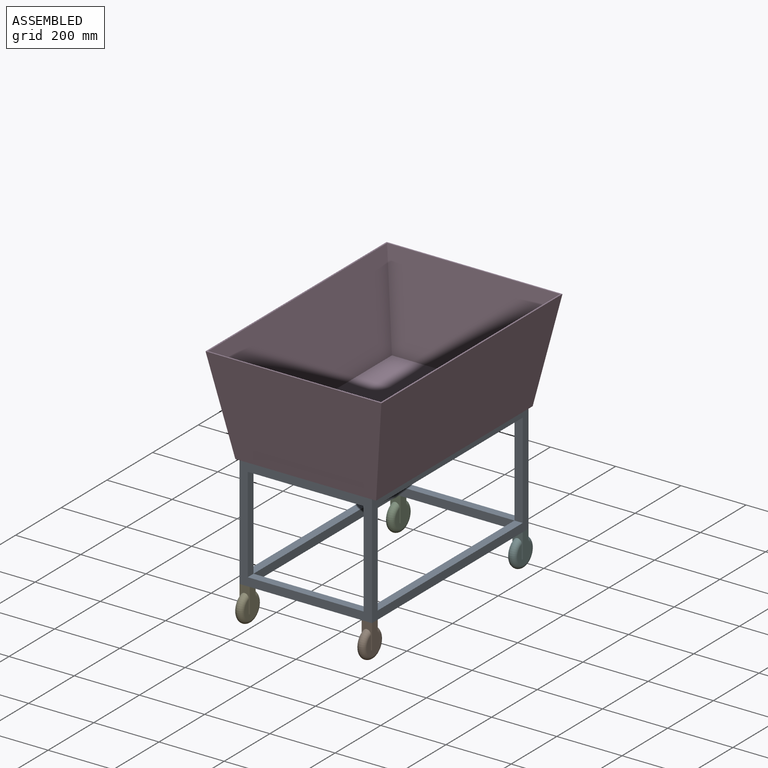
[diagram: assembled view]
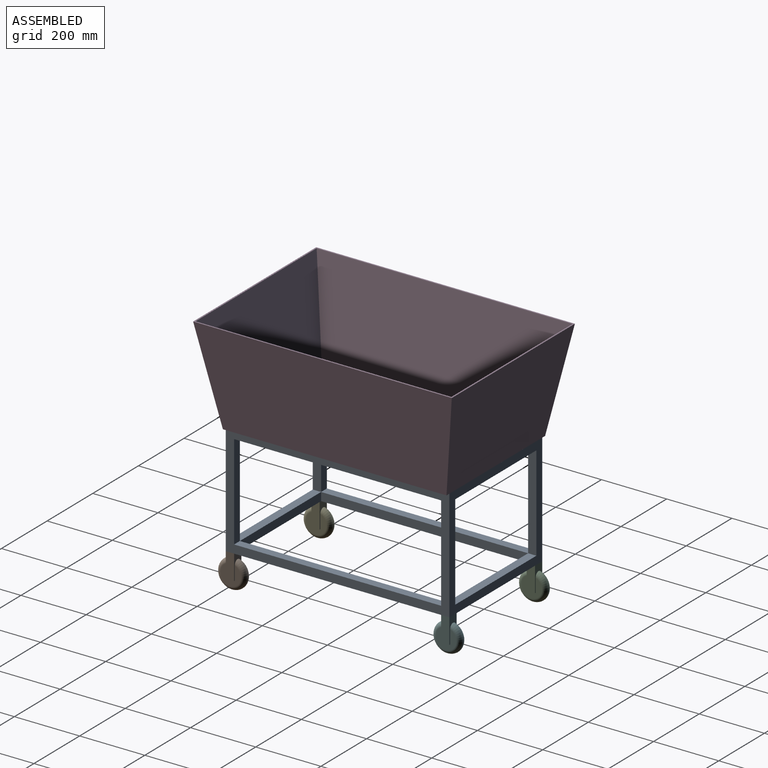
[diagram: assembled view, second angle]
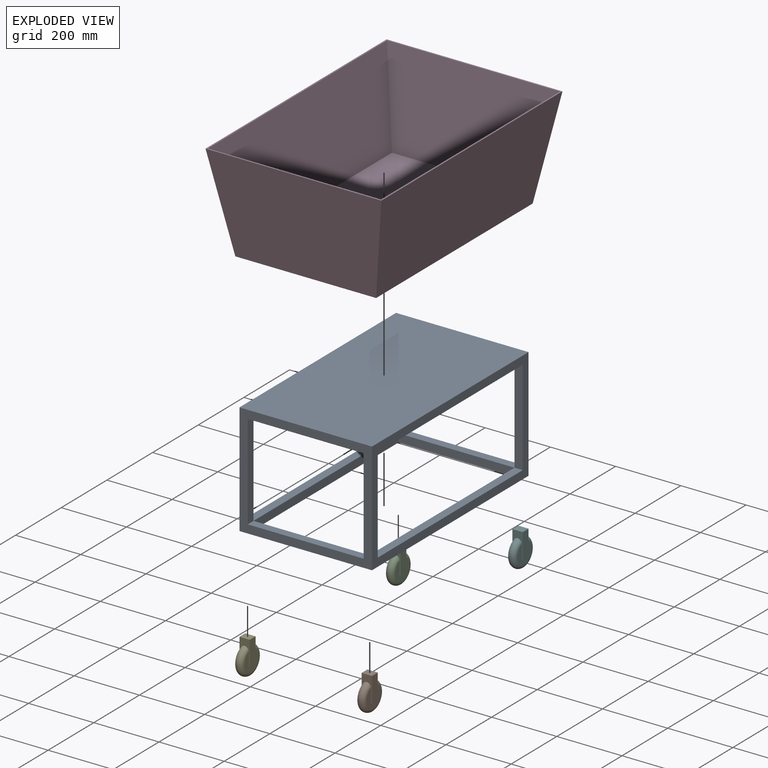
[diagram: exploded view]
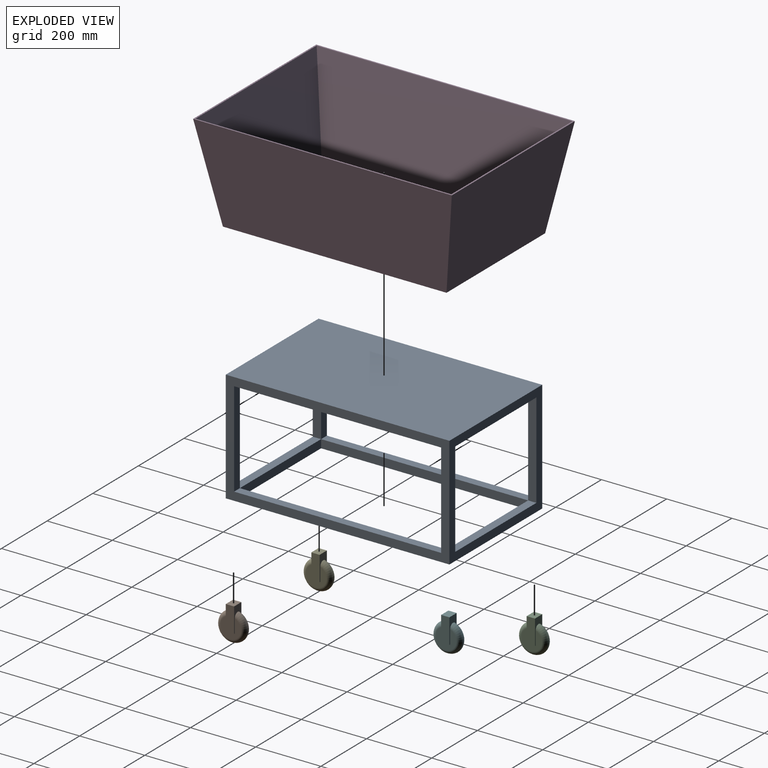
[diagram: exploded view, second angle]
ASSEMBLY  parts=6 mates=5
PART A: 23 faces, bbox 406.4x685.8x342.9 mm
  f0: plane 355.6x25.4mm, normal (0,0,1), area 9032.2mm2, adj f6,f8,f14,f19
  f1: plane 635x25.4mm, normal (0,0,1), area 16129mm2, adj f7,f11,f15,f22
  f2: plane 635x25.4mm, normal (0,0,1), area 16129mm2, adj f5,f9,f13,f20
  f3: plane 685.8x406.4mm, normal (0,0,-1), area 52903.1mm2, adj f12,f13,f14,f15,f19,f20,f21,f22
  f4: plane 292.1x25.4mm, normal (-1,0,0), area 7419.3mm2, adj f5,f12,f17,f18
  f5: plane 292.1x25.4mm, normal (0,1,0), area 7419.3mm2, adj f2,f4,f13,f17
  f6: plane 292.1x25.4mm, normal (1,0,0), area 7419.3mm2, adj f0,f7,f14,f17
  f7: plane 292.1x25.4mm, normal (0,-1,0), area 7419.3mm2, adj f1,f6,f15,f17
  f8: plane 292.1x25.4mm, normal (-1,0,0), area 7419.3mm2, adj f0,f9,f14,f17
  f9: plane 292.1x25.4mm, normal (0,-1,0), area 7419.3mm2, adj f2,f8,f13,f17
  f10: plane 292.1x25.4mm, normal (1,0,0), area 7419.3mm2, adj f11,f12,f17,f18
  f11: plane 292.1x25.4mm, normal (0,1,0), area 7419.3mm2, adj f1,f10,f15,f17
  f12: plane 406.4x342.9mm, normal (0,-1,0), area 35483.8mm2, adj f3,f4,f10,f13,f15,f16,f17,f18
  f13: plane 685.8x342.9mm, normal (1,0,0), area 49677.3mm2, adj f2,f3,f5,f9,f12,f14,f16,f17
  f14: plane 406.4x342.9mm, normal (0,1,0), area 35483.8mm2, adj f0,f3,f6,f8,f13,f15,f16,f17
  f15: plane 685.8x342.9mm, normal (-1,0,0), area 49677.3mm2, adj f1,f3,f7,f11,f12,f14,f16,f17
  f16: plane 685.8x406.4mm, normal (0,0,1), area 278709.1mm2, adj f12,f13,f14,f15
  f17: plane 685.8x406.4mm, normal (0,0,-1), area 276128.5mm2, adj f4,f5,f6,f7,f8,f9,f10,f11
  f18: plane 355.6x25.4mm, normal (0,0,1), area 9032.2mm2, adj f4,f10,f12,f21
  f19: plane 355.6x25.4mm, normal (0,-1,0), area 9032.2mm2, adj f0,f3,f20,f22
  f20: plane 635x25.4mm, normal (-1,0,0), area 16129mm2, adj f2,f3,f19,f21
  f21: plane 355.6x25.4mm, normal (0,1,0), area 9032.2mm2, adj f3,f18,f20,f22
  f22: plane 635x25.4mm, normal (1,0,0), area 16129mm2, adj f1,f3,f19,f21
PART B: 10 faces, bbox 31.8x96.2x111.6 mm
  f0: plane 25.4x3.18mm, normal (0,0,-1), area 80.6mm2, adj f1,f5,f6,f8
  f1: plane 76.2x25.4mm, normal (-1,0,0), area 1935.5mm2, adj f0,f4,f5,f6
  f2: plane 25.4x3.18mm, normal (0,0,-1), area 80.6mm2, adj f3,f5,f6,f7
  f3: plane 76.2x25.4mm, normal (1,0,0), area 1935.5mm2, adj f2,f4,f5,f6
  f4: plane 31.75x25.4mm, normal (0,0,1), area 806.5mm2, adj f1,f3,f5,f6
  f5: plane 76.2x31.75mm, normal (0,-1,0), area 1087.5mm2, adj f0,f1,f2,f3,f4,f7,f8,f9
  f6: plane 76.2x31.75mm, normal (0,1,0), area 1087.6mm2, adj f0,f1,f2,f3,f4,f7,f8,f9
  f7: plane 63.5x60.85mm, normal (1,0,0), area 2059.9mm2, adj f2,f5,f6,f9
  f8: plane 63.5x60.85mm, normal (-1,0,0), area 2059.9mm2, adj f0,f5,f6,f9
  f9: torus R=31.75mm, axis (1,0,0), area 8953.7mm2, adj f5,f6,f7,f8
PART C: same geometry as B
PART D: 11 faces, bbox 539.3x793.3x304.8 mm
  f0: plane 793.29x539.29mm, normal (0,0,1), area 11856.2mm2, adj f1,f2,f3,f4,f6,f7,f8,f9
  f1: plane 539.29x304.8mm, normal (0,-0.98,-0.17), area 150277mm2, adj f0,f2,f4,f5
  f2: plane 793.29x304.8mm, normal (0.98,0,-0.17), area 228890.5mm2, adj f0,f1,f3,f5
  f3: plane 539.29x304.8mm, normal (0,0.98,-0.17), area 150277mm2, adj f0,f2,f4,f5
  f4: plane 793.29x304.8mm, normal (-0.98,0,-0.17), area 228890.5mm2, adj f0,f1,f3,f5
  f5: plane 685.8x431.8mm, normal (0,0,-1), area 296128.4mm2, adj f1,f2,f3,f4
  f6: plane 784.33x279.4mm, normal (-0.98,0,0.17), area 208545.6mm2, adj f0,f7,f9,f10
  f7: plane 530.33x279.4mm, normal (0,-0.98,0.17), area 136483.3mm2, adj f0,f6,f8,f10
  f8: plane 784.33x279.4mm, normal (0.98,0,0.17), area 208545.6mm2, adj f0,f7,f9,f10
  f9: plane 530.33x279.4mm, normal (0,0.98,0.17), area 136483.3mm2, adj f0,f6,f8,f10
  f10: plane 685.8x431.8mm, normal (0,0,1), area 296128.4mm2, adj f6,f7,f8,f9
PART E: same geometry as B
PART F: same geometry as B
PLACE A t=(-34.49,-50.68,99.9)mm
PLACE B t=(152.83,-380.88,-281.1)mm
PLACE C t=(-221.82,279.52,-281.1)mm
PLACE D t=(-34.49,-50.68,125.3)mm
PLACE E t=(-221.82,-380.88,-281.1)mm
PLACE F t=(152.83,279.52,-281.1)mm
MATE fastened C.f4 <-> A.f3  axis (0,0,1) through (-221.82,279.52,-217.6)mm
MATE fastened D.f5 <-> A.f16  axis (0,0,-1) through (-34.49,-50.68,125.3)mm
MATE fastened E.f4 <-> A.f3  axis (0,0,1) through (-221.82,-380.88,-217.6)mm
MATE fastened F.f4 <-> A.f3  axis (0,0,1) through (152.83,279.52,-217.6)mm
MATE fastened B.f4 <-> A.f3  axis (0,0,1) through (152.83,-380.88,-217.6)mm
